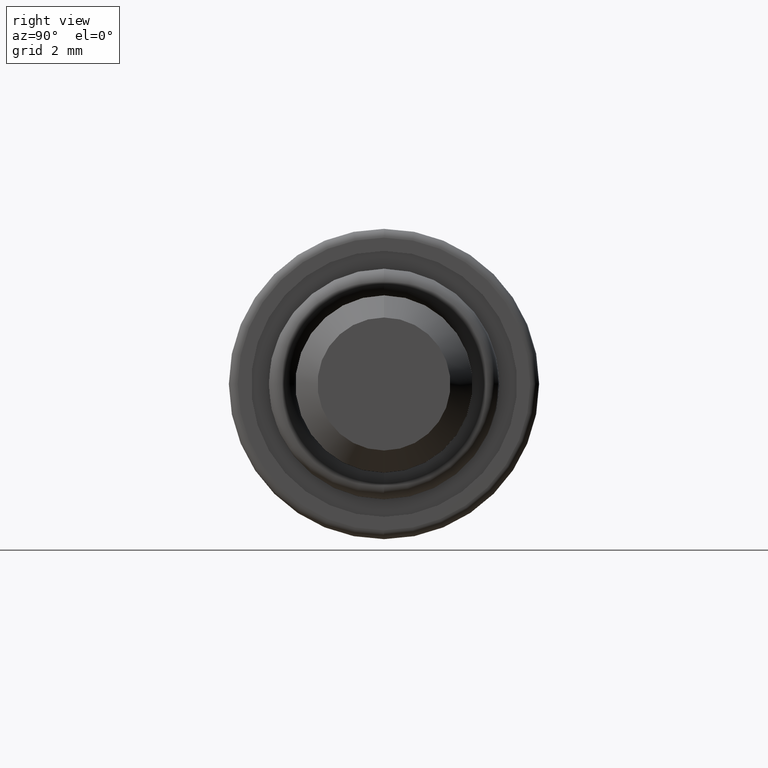
[diagram: clean part render]
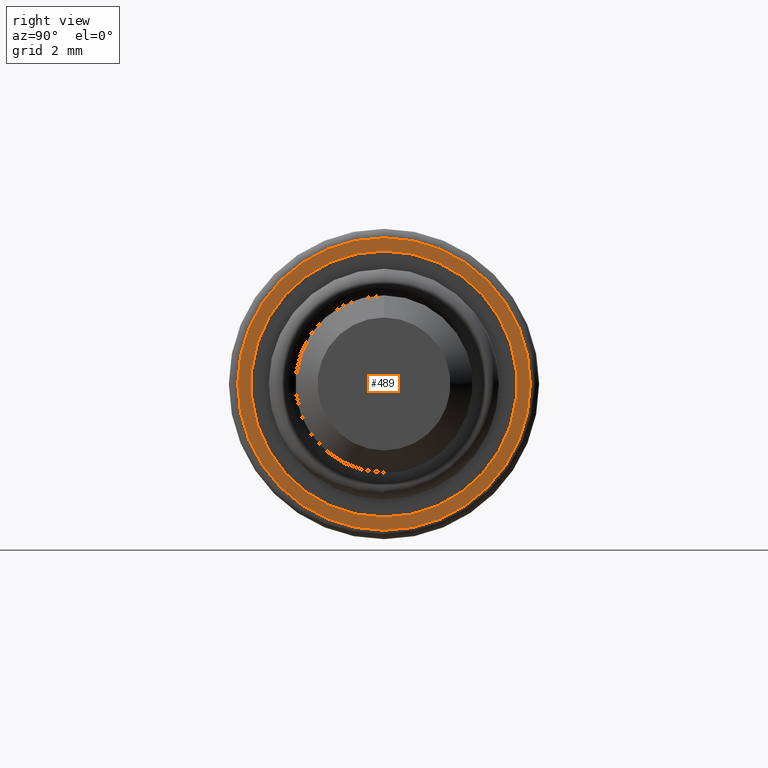
[diagram: same view with one face highlighted and labeled with its STEP entity id]
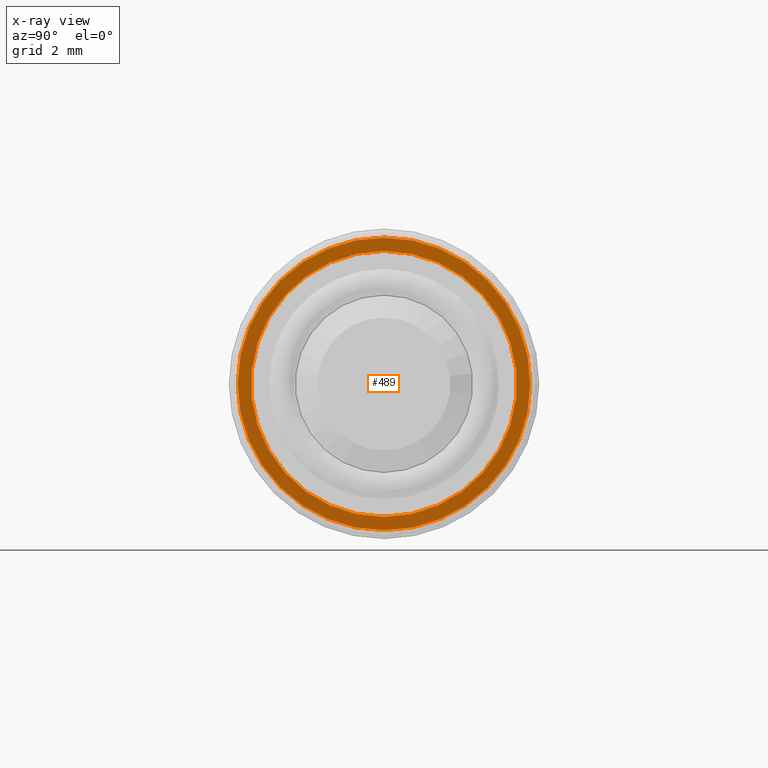
[diagram: x-ray of the same camera — body ghosted, the highlighted face saturated]
A machine part, right view. The second image highlights one B-rep face of the part: STEP entity #489.
The next image is the same camera in x-ray: the body ghosted, the highlighted face saturated — about 0% of this face is hidden behind the body in this view.
In plain terms, the highlighted planar face has unit normal (1, 0, 0).
Its self-contained STEP definition (entity closure, byte-faithful):
#6 = ORIENTED_EDGE ( 'NONE', *, *, #53, .T. ) ;
#11 = CARTESIAN_POINT ( 'NONE',  ( 0.0000000000000000000, 0.0000000000000000000, 0.0000000000000000000 ) ) ;
#13 = VERTEX_POINT ( 'NONE', #40 ) ;
#24 = VERTEX_POINT ( 'NONE', #165 ) ;
#40 = CARTESIAN_POINT ( 'NONE',  ( 0.0000000000000000000, 0.0000000000000000000, -3.000000000000000400 ) ) ;
#53 = EDGE_CURVE ( 'NONE', #444, #803, #676, .T. ) ;
#63 = ORIENTED_EDGE ( 'NONE', *, *, #747, .F. ) ;
#165 = CARTESIAN_POINT ( 'NONE',  ( 0.0000000000000000000, 3.673940397442060400E-016, 3.000000000000000400 ) ) ;
#181 = AXIS2_PLACEMENT_3D ( 'NONE', #401, #705, #472 ) ;
#191 = CIRCLE ( 'NONE', #511, 3.300000000000000300 ) ;
#197 = AXIS2_PLACEMENT_3D ( 'NONE', #361, #748, #296 ) ;
#211 = ORIENTED_EDGE ( 'NONE', *, *, #575, .T. ) ;
#212 = DIRECTION ( 'NONE',  ( 0.0000000000000000000, 0.0000000000000000000, -1.000000000000000000 ) ) ;
#218 = DIRECTION ( 'NONE',  ( 1.000000000000000000, 0.0000000000000000000, 0.0000000000000000000 ) ) ;
#253 = DIRECTION ( 'NONE',  ( 0.0000000000000000000, 0.0000000000000000000, -1.000000000000000000 ) ) ;
#269 = EDGE_LOOP ( 'NONE', ( #6, #211 ) ) ;
#270 = CARTESIAN_POINT ( 'NONE',  ( 0.0000000000000000000, 4.163799117101001500E-016, 3.300000000000000300 ) ) ;
#296 = DIRECTION ( 'NONE',  ( 0.0000000000000000000, 0.0000000000000000000, -1.000000000000000000 ) ) ;
#306 = CARTESIAN_POINT ( 'NONE',  ( 0.0000000000000000000, 0.0000000000000000000, -3.300000000000000300 ) ) ;
#309 = CARTESIAN_POINT ( 'NONE',  ( 0.0000000000000000000, 0.0000000000000000000, 0.0000000000000000000 ) ) ;
#334 = DIRECTION ( 'NONE',  ( 1.000000000000000000, 0.0000000000000000000, 0.0000000000000000000 ) ) ;
#361 = CARTESIAN_POINT ( 'NONE',  ( 0.0000000000000000000, 0.0000000000000000000, 0.0000000000000000000 ) ) ;
#401 = CARTESIAN_POINT ( 'NONE',  ( 0.0000000000000000000, 0.0000000000000000000, 0.0000000000000000000 ) ) ;
#411 = AXIS2_PLACEMENT_3D ( 'NONE', #309, #334, #253 ) ;
#439 = EDGE_CURVE ( 'NONE', #24, #13, #459, .T. ) ;
#444 = VERTEX_POINT ( 'NONE', #306 ) ;
#459 = CIRCLE ( 'NONE', #197, 3.000000000000000400 ) ;
#472 = DIRECTION ( 'NONE',  ( 0.0000000000000000000, 0.0000000000000000000, -1.000000000000000000 ) ) ;
#481 = CIRCLE ( 'NONE', #411, 3.000000000000000400 ) ;
#486 = AXIS2_PLACEMENT_3D ( 'NONE', #11, #495, #818 ) ;
#489 = ADVANCED_FACE ( 'NONE', ( #624, #587 ), #555, .T. ) ;
#495 = DIRECTION ( 'NONE',  ( 1.000000000000000000, 0.0000000000000000000, 0.0000000000000000000 ) ) ;
#505 = ORIENTED_EDGE ( 'NONE', *, *, #439, .F. ) ;
#511 = AXIS2_PLACEMENT_3D ( 'NONE', #529, #218, #212 ) ;
#529 = CARTESIAN_POINT ( 'NONE',  ( 0.0000000000000000000, 0.0000000000000000000, 0.0000000000000000000 ) ) ;
#555 = PLANE ( 'NONE',  #486 ) ;
#575 = EDGE_CURVE ( 'NONE', #803, #444, #191, .T. ) ;
#587 = FACE_BOUND ( 'NONE', #651, .T. ) ;
#624 = FACE_OUTER_BOUND ( 'NONE', #269, .T. ) ;
#651 = EDGE_LOOP ( 'NONE', ( #63, #505 ) ) ;
#676 = CIRCLE ( 'NONE', #181, 3.300000000000000300 ) ;
#705 = DIRECTION ( 'NONE',  ( 1.000000000000000000, 0.0000000000000000000, 0.0000000000000000000 ) ) ;
#747 = EDGE_CURVE ( 'NONE', #13, #24, #481, .T. ) ;
#748 = DIRECTION ( 'NONE',  ( 1.000000000000000000, 0.0000000000000000000, 0.0000000000000000000 ) ) ;
#803 = VERTEX_POINT ( 'NONE', #270 ) ;
#818 = DIRECTION ( 'NONE',  ( 0.0000000000000000000, 0.0000000000000000000, -1.000000000000000000 ) ) ;